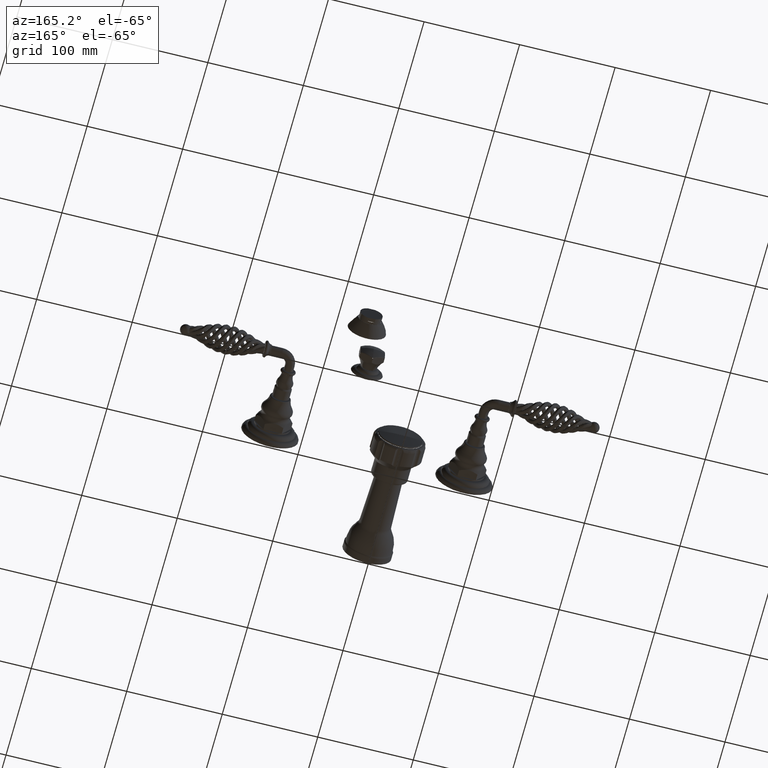
[diagram: clean part render]
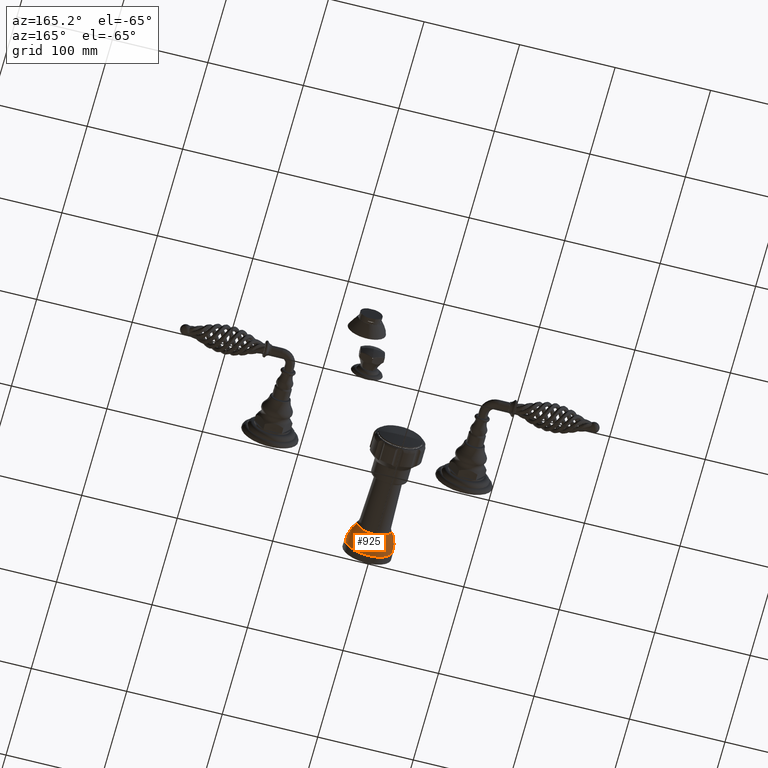
[diagram: same view with one face highlighted and labeled with its STEP entity id]
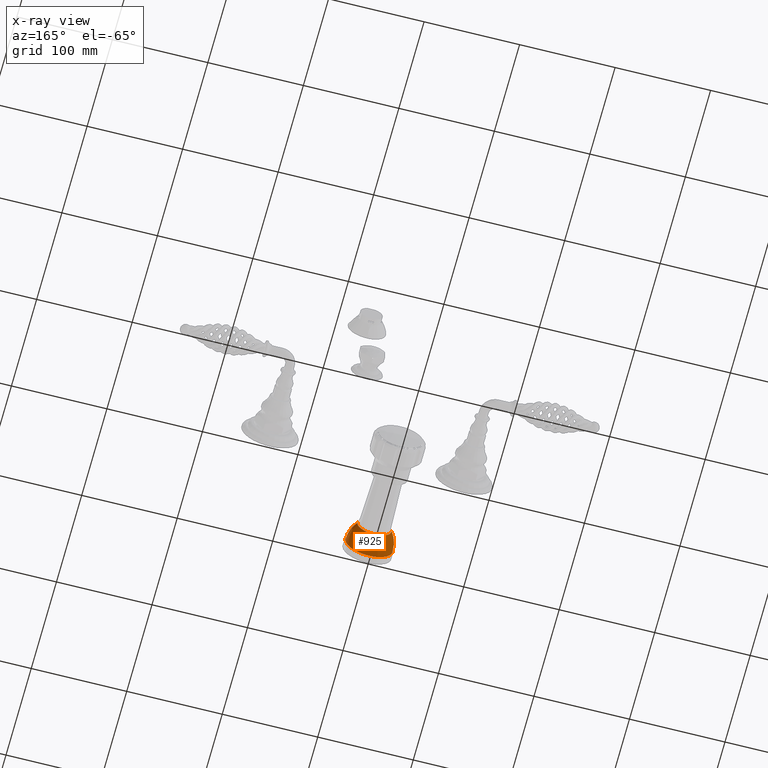
[diagram: x-ray of the same camera — body ghosted, the highlighted face saturated]
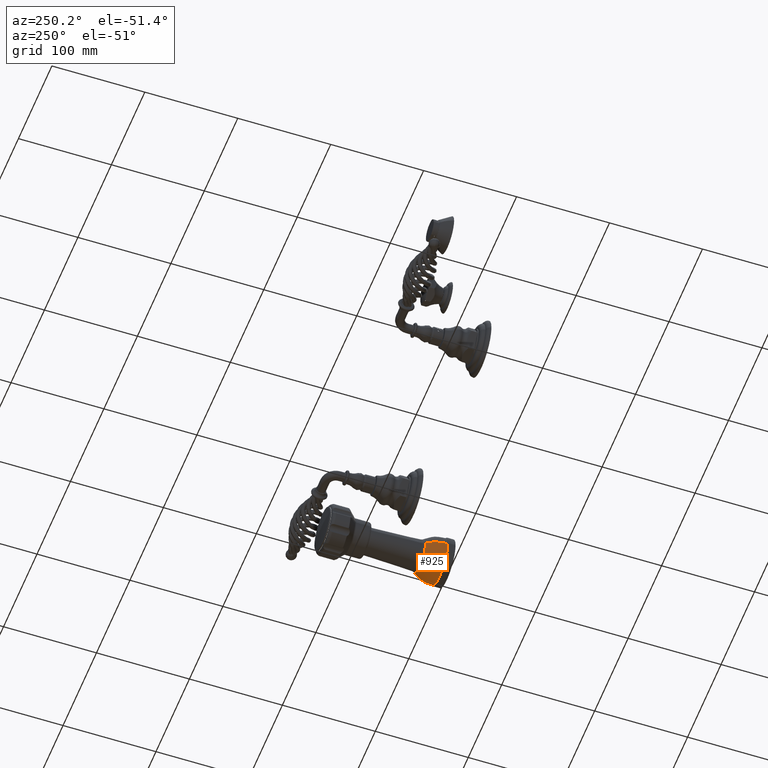
[diagram: same view with one face highlighted and labeled with its STEP entity id]
A machine part, auxiliary view. The second image highlights one B-rep face of the part: STEP entity #925.
The next image is the same camera in x-ray: the body ghosted, the highlighted face saturated — about 0% of this face is hidden behind the body in this view.
A second angle (auxiliary view) of the same face is appended — the face is thin or edge-on in the first view.
In plain terms, the highlighted face is a freeform B-spline surface patch.
Its self-contained STEP definition (entity closure, byte-faithful):
#682=CARTESIAN_POINT('',(0.E0,9.599621443206E-1,-9.E0));
#683=DIRECTION('',(0.E0,-1.E0,0.E0));
#684=DIRECTION('',(-1.E0,0.E0,6.847652671562E-12));
#685=AXIS2_PLACEMENT_3D('',#682,#683,#684);
#687=CARTESIAN_POINT('',(3.240200080290E-1,1.696849971899E-1,-9.E0));
#688=DIRECTION('',(0.E0,0.E0,-1.E0));
#689=DIRECTION('',(-9.992461600223E-1,-3.882153629989E-2,0.E0));
#690=AXIS2_PLACEMENT_3D('',#687,#688,#689);
#692=CARTESIAN_POINT('',(0.E0,1.19217E-1,-9.E0));
#693=DIRECTION('',(0.E0,1.E0,0.E0));
#694=DIRECTION('',(1.E0,0.E0,0.E0));
#695=AXIS2_PLACEMENT_3D('',#692,#693,#694);
#697=CARTESIAN_POINT('',(-3.240200080290E-1,1.696849971899E-1,-9.E0));
#698=DIRECTION('',(0.E0,0.E0,1.E0));
#699=DIRECTION('',(9.992461600223E-1,-3.882153629989E-2,0.E0));
#700=AXIS2_PLACEMENT_3D('',#697,#698,#699);
#706=CARTESIAN_POINT('',(9.75E-1,1.19217E-1,-9.E0));
#707=VERTEX_POINT('',#706);
#712=CARTESIAN_POINT('',(-9.75E-1,1.19217E-1,-9.E0));
#713=VERTEX_POINT('',#712);
#722=CARTESIAN_POINT('',(-7.081921943416E-1,9.599621443206E-1,
-8.999999999995E0));
#723=CARTESIAN_POINT('',(7.081921943416E-1,9.599621443206E-1,
-8.999999999992E0));
#724=VERTEX_POINT('',#722);
#725=VERTEX_POINT('',#723);
#890=CARTESIAN_POINT('',(-6.957763873579E-1,9.741771426990E-1,
-8.956225460106E0));
#891=CARTESIAN_POINT('',(-8.927394575172E-1,7.236702092649E-1,
-8.943833594086E0));
#892=CARTESIAN_POINT('',(-9.890124290412E-1,4.197021830320E-1,
-8.937776612117E0));
#893=CARTESIAN_POINT('',(-9.722544767546E-1,1.012374400996E-1,
-8.938830933109E0));
#894=CARTESIAN_POINT('',(-7.227151778058E-1,9.741771426990E-1,
-9.384405272919E0));
#895=CARTESIAN_POINT('',(-9.273041849318E-1,7.236702092649E-1,
-9.493224203994E0));
#896=CARTESIAN_POINT('',(-1.027304614663E0,4.197021830320E-1,
-9.546413473659E0));
#897=CARTESIAN_POINT('',(-1.009897834717E0,1.012374400996E-1,
-9.537154974320E0));
#898=CARTESIAN_POINT('',(-4.290263984083E-1,9.741771426990E-1,
-9.697152057695E0));
#899=CARTESIAN_POINT('',(-5.504768502277E-1,7.236702092649E-1,
-9.894504557932E0));
#900=CARTESIAN_POINT('',(-6.098402419546E-1,4.197021830320E-1,
-9.990967877783E0));
#901=CARTESIAN_POINT('',(-5.995070313932E-1,1.012374400996E-1,
-9.974176792124E0));
#902=CARTESIAN_POINT('',(0.E0,9.741771426990E-1,-9.697152057695E0));
#903=CARTESIAN_POINT('',(0.E0,7.236702092649E-1,-9.894504557932E0));
#904=CARTESIAN_POINT('',(0.E0,4.197021830320E-1,-9.990967877783E0));
#905=CARTESIAN_POINT('',(0.E0,1.012374400996E-1,-9.974176792124E0));
#906=CARTESIAN_POINT('',(4.290263984083E-1,9.741771426990E-1,
-9.697152057695E0));
#907=CARTESIAN_POINT('',(5.504768502277E-1,7.236702092649E-1,
-9.894504557932E0));
#908=CARTESIAN_POINT('',(6.098402419546E-1,4.197021830320E-1,
-9.990967877783E0));
#909=CARTESIAN_POINT('',(5.995070313932E-1,1.012374400996E-1,
-9.974176792124E0));
#910=CARTESIAN_POINT('',(7.227151778058E-1,9.741771426990E-1,
-9.384405272919E0));
#911=CARTESIAN_POINT('',(9.273041849318E-1,7.236702092649E-1,
-9.493224203994E0));
#912=CARTESIAN_POINT('',(1.027304614663E0,4.197021830320E-1,-9.546413473659E0));
#913=CARTESIAN_POINT('',(1.009897834717E0,1.012374400996E-1,-9.537154974320E0));
#914=CARTESIAN_POINT('',(6.957763873579E-1,9.741771426990E-1,
-8.956225460106E0));
#915=CARTESIAN_POINT('',(8.927394575172E-1,7.236702092649E-1,
-8.943833594086E0));
#916=CARTESIAN_POINT('',(9.890124290412E-1,4.197021830320E-1,
-8.937776612117E0));
#917=CARTESIAN_POINT('',(9.722544767546E-1,1.012374400996E-1,
-8.938830933109E0));
#918=(BOUNDED_SURFACE()B_SPLINE_SURFACE(3,3,((#890,#891,#892,#893),(#894,#895,
#896,#897),(#898,#899,#900,#901),(#902,#903,#904,#905),(#906,#907,#908,#909),(
#910,#911,#912,#913),(#914,#915,#916,#917)),.UNSPECIFIED.,.F.,.F.,.F.)B_SPLINE_SURFACE_WITH_KNOTS((4,3,4),(4,4),(0.E0,1.E0,2.E0),(0.E0,1.E0),.UNSPECIFIED.)GEOMETRIC_REPRESENTATION_ITEM()RATIONAL_B_SPLINE_SURFACE(((1.226569936028E0,
1.174160331316E0,1.174160331316E0,1.226569936028E0),(9.686199119607E-1,
9.272321482379E-1,9.272321482379E-1,9.686199119607E-1),(9.686199119607E-1,
9.272321482379E-1,9.272321482379E-1,9.686199119607E-1),(1.226569936028E0,
1.174160331316E0,1.174160331316E0,1.226569936028E0),(9.686199119607E-1,
9.272321482379E-1,9.272321482379E-1,9.686199119607E-1),(9.686199119607E-1,
9.272321482379E-1,9.272321482379E-1,9.686199119607E-1),(1.226569936028E0,
1.174160331316E0,1.174160331316E0,1.226569936028E0)))REPRESENTATION_ITEM('')SURFACE());
#919=ORIENTED_EDGE('',*,*,#884,.F.);
#920=ORIENTED_EDGE('',*,*,#828,.F.);
#921=ORIENTED_EDGE('',*,*,#773,.F.);
#922=ORIENTED_EDGE('',*,*,#825,.T.);
#923=EDGE_LOOP('',(#919,#920,#921,#922));
#924=FACE_OUTER_BOUND('',#923,.F.);
#925=ADVANCED_FACE('',(#924),#918,.T.);
#686=CIRCLE('',#685,7.081921943416E-1);
#691=CIRCLE('',#690,1.3E0);
#696=CIRCLE('',#695,9.75E-1);
#701=CIRCLE('',#700,1.3E0);
#773=EDGE_CURVE('',#707,#713,#696,.T.);
#825=EDGE_CURVE('',#707,#725,#701,.T.);
#828=EDGE_CURVE('',#713,#724,#691,.T.);
#884=EDGE_CURVE('',#724,#725,#686,.T.);